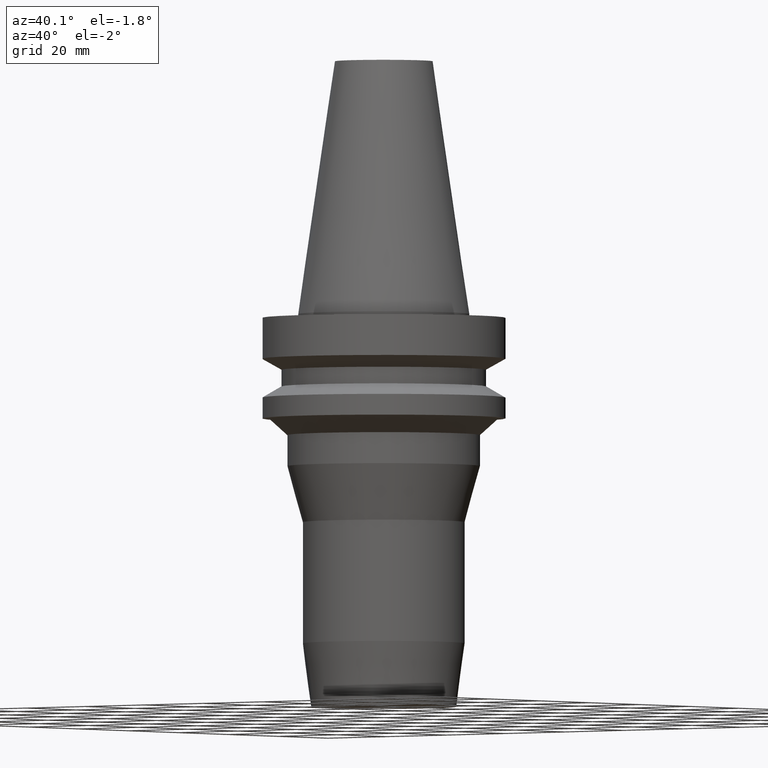
[diagram: clean part render]
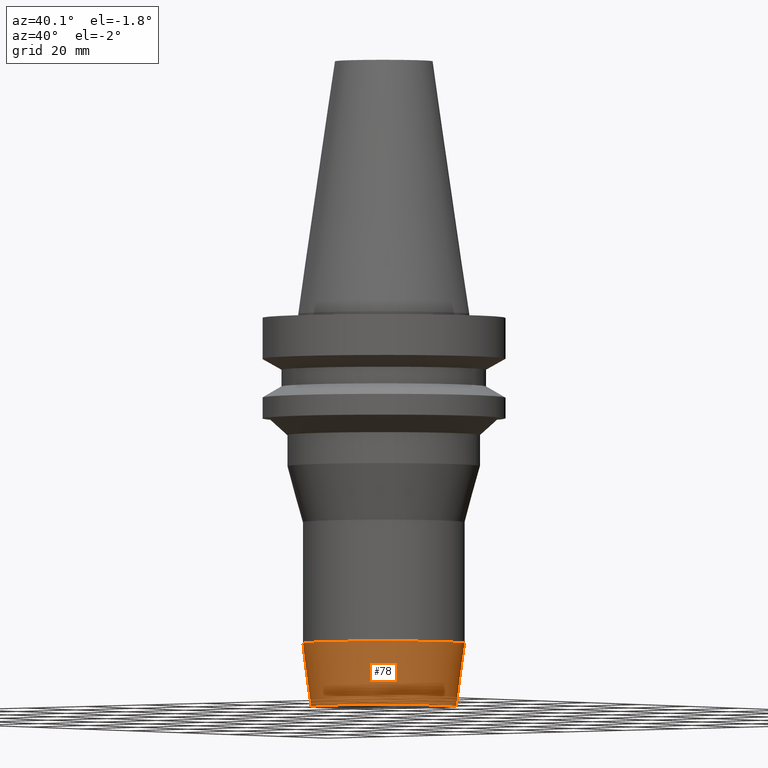
[diagram: same view with one face highlighted and labeled with its STEP entity id]
A machine part, auxiliary view. The second image highlights one B-rep face of the part: STEP entity #78.
In plain terms, the highlighted conical surface has half-angle 7.5 deg.
Its self-contained STEP definition (entity closure, byte-faithful):
#78=ADVANCED_FACE('Unnamed[1]',(#187,#188),#189,.T.);
#106=EDGE_CURVE('Unnamed[1]',#233,#233,#234,.T.);
#135=EDGE_CURVE('Unnamed[1]',#276,#276,#277,.T.);
#187=FACE_BOUND('',#329,.T.);
#188=FACE_BOUND('',#330,.T.);
#189=CONICAL_SURFACE('',#331,19.9227653025994,0.130899693899637);
#233=VERTEX_POINT('',#386);
#234=CIRCLE('',#387,18.8455306051985);
#276=VERTEX_POINT('',#439);
#277=CIRCLE('',#440,21.0000000000003);
#329=EDGE_LOOP('',(#479));
#330=EDGE_LOOP('',(#480));
#331=AXIS2_PLACEMENT_3D('',#481,#482,#483);
#386=CARTESIAN_POINT('',(6.22120573966854E-015,18.8455306051985,-101.6));
#387=AXIS2_PLACEMENT_3D('',#532,#533,#534);
#439=CARTESIAN_POINT('',(5.21914953239753E-015,21.0000000000003,-85.2351802337018));
#440=AXIS2_PLACEMENT_3D('',#579,#580,#581);
#479=ORIENTED_EDGE('',*,*,#106,.F.);
#480=ORIENTED_EDGE('',*,*,#135,.T.);
#481=CARTESIAN_POINT('',(5.72017763603303E-015,-1.0408398072973E-014,-93.4175901168507));
#482=DIRECTION('',(-6.12323399573677E-017,5.47979376128795E-016,1.0));
#483=DIRECTION('',(2.87269067179703E-032,1.0,-5.47979376128795E-016));
#532=CARTESIAN_POINT('',(6.22120573966853E-015,-1.48921899359708E-014,-101.6));
#533=DIRECTION('',(6.12323399573677E-017,-5.47979376128788E-016,-1.0));
#534=DIRECTION('',(2.87269067179746E-032,1.0,-5.47979376128788E-016));
#579=CARTESIAN_POINT('',(5.21914953239753E-015,-5.92460620997522E-015,-85.2351802337018));
#580=DIRECTION('',(6.12323399573677E-017,-5.47979376128802E-016,-1.0));
#581=DIRECTION('',(2.87269067179791E-032,1.0,-5.47979376128802E-016));